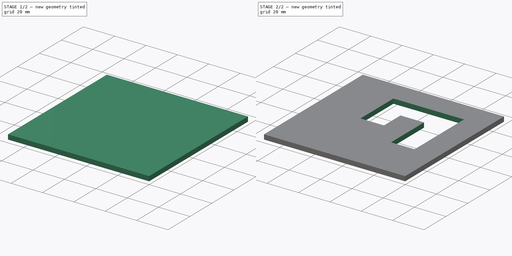
[diagram: build sequence overview — one tinted view per stage of 2, left to right]
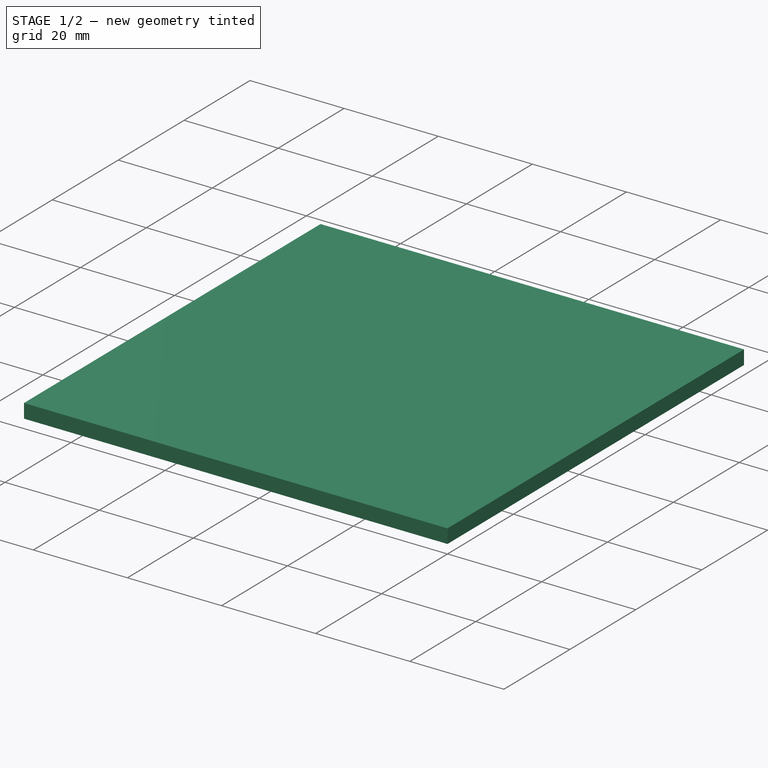
[diagram: stage 1 of 2 — iso view after this stage's code; geometry added in this stage tinted green]
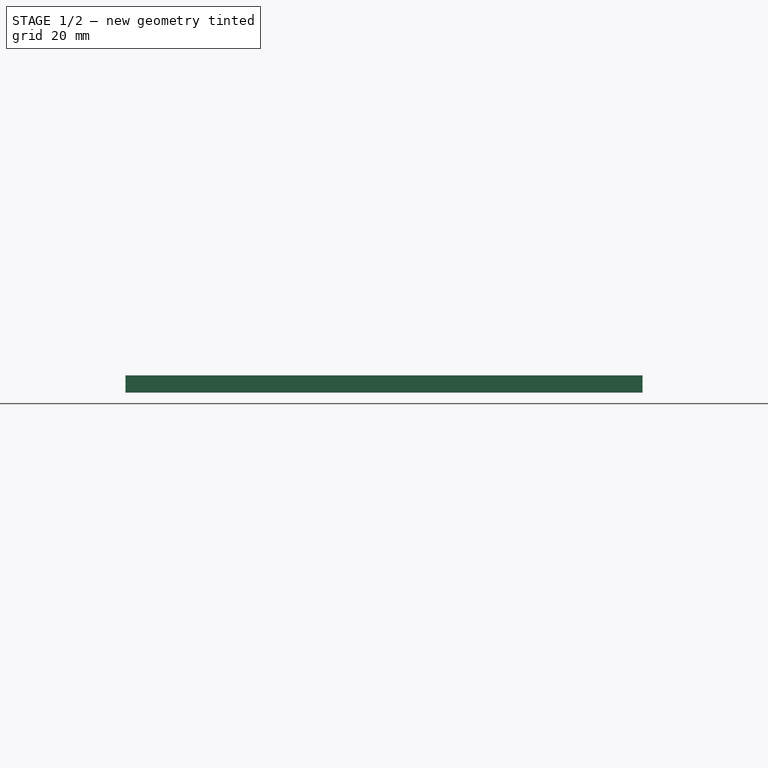
[diagram: stage 1 of 2 — front view after this stage's code; geometry added in this stage tinted green]
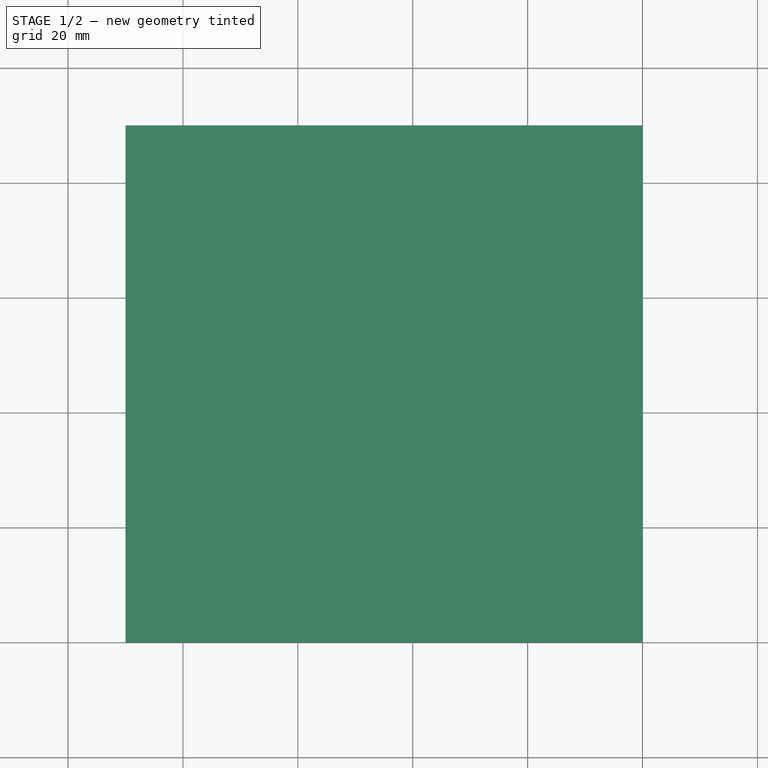
[diagram: stage 1 of 2 — top view after this stage's code; geometry added in this stage tinted green]
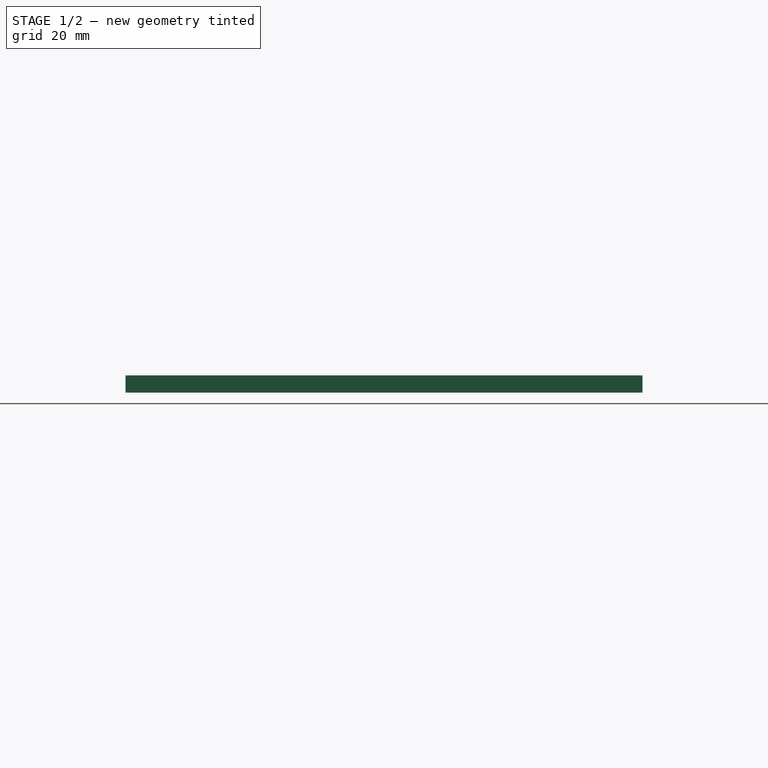
[diagram: stage 1 of 2 — right view after this stage's code; geometry added in this stage tinted green]
FCSTD DOCUMENT  (FreeCAD 0.18R16117 (Git))
Label: BackGroundID34
License: All rights reserved
LicenseURL: http://en.wikipedia.org/wiki/All_rights_reserved
objects: Sketcher::SketchObject×3, PartDesign::Pad×1, PartDesign::Pocket×1, PartDesign::Body×1
note: 8 computed .brp shape members not serialized (recipe doc carries the construction recipe); baked Part::Feature solids carry a one-line shape summary decoded from their .brp

FEATURE [Sketcher::SketchObject] Sketch  label="Background"
  MapMode = 5
  Support = -> [XY_Plane]
  sketch-geometry (4):
    g0: LineSegment StartX=-90 StartY=90 StartZ=0 EndX=0 EndY=90 EndZ=0
    g1: LineSegment StartX=0 StartY=90 StartZ=0 EndX=0 EndY=0 EndZ=0
    g2: LineSegment StartX=0 StartY=0 StartZ=0 EndX=-90 EndY=0 EndZ=0
    g3: LineSegment StartX=-90 StartY=0 StartZ=0 EndX=-90 EndY=90 EndZ=0
  constraints (11):
    c: Coincident(g0,g1)
    c: Coincident(g1,g2)
    c: Coincident(g2,g3)
    c: Coincident(g3,g0)
    c: Horizontal(g0)
    c: Horizontal(g2)
    c: Vertical(g1)
    c: Vertical(g3)
    c: DistanceY(g1,g1) = 90
    c: DistanceX(g2,g2) = 90
    c: Coincident(g1,g-1)
FEATURE [PartDesign::Pad] Pad
  Length = 3
  Length2 = 100
  Profile = -> Sketch
  Type = 0
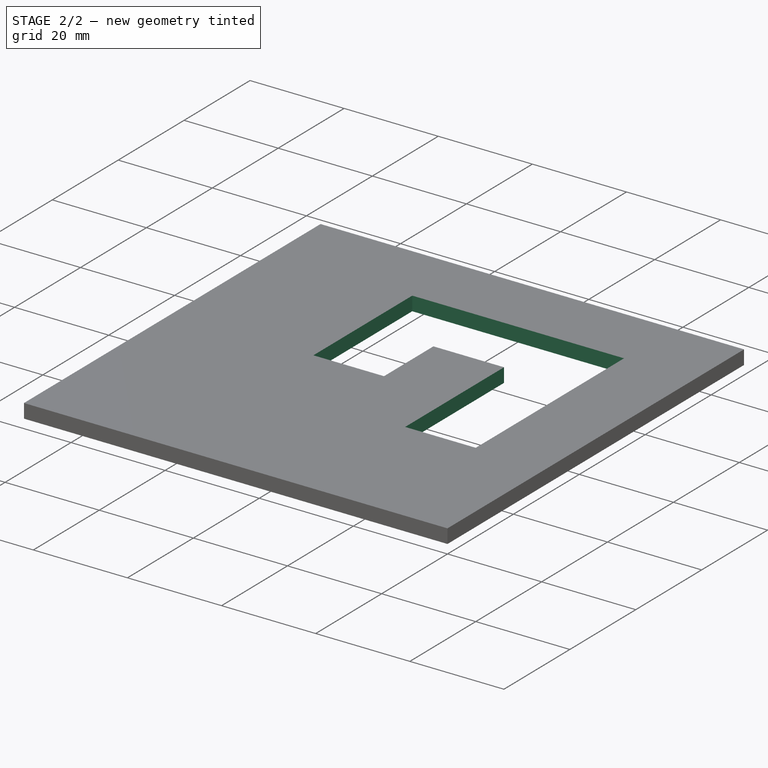
[diagram: stage 2 of 2 — iso view after this stage's code; geometry added in this stage tinted green]
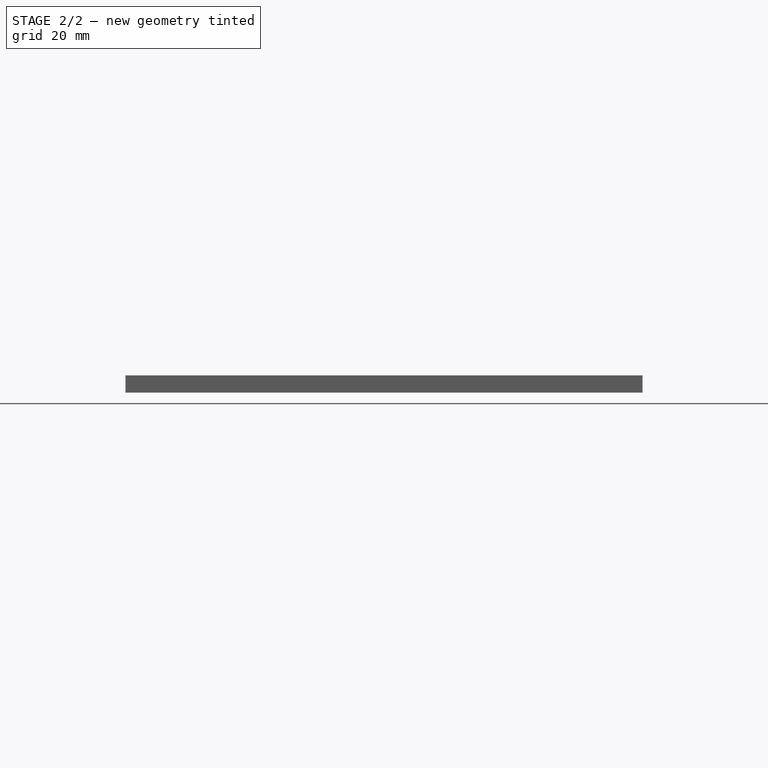
[diagram: stage 2 of 2 — front view after this stage's code; geometry added in this stage tinted green]
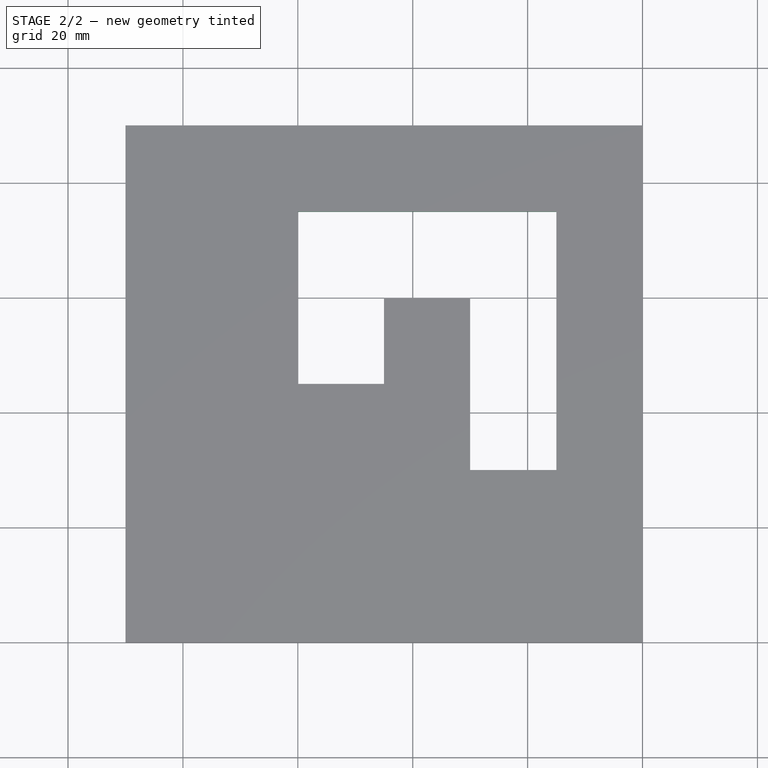
[diagram: stage 2 of 2 — top view after this stage's code; geometry added in this stage tinted green]
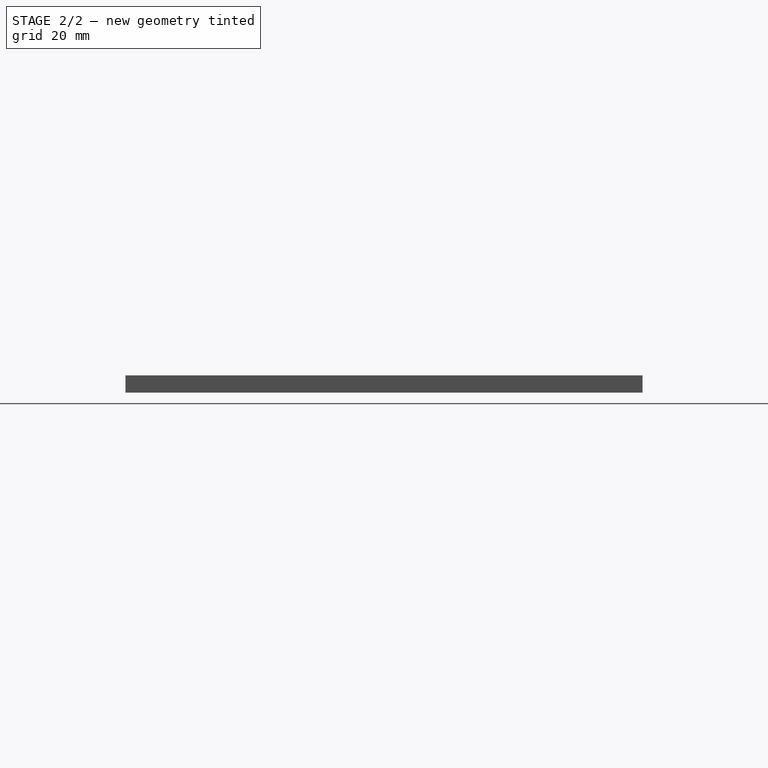
[diagram: stage 2 of 2 — right view after this stage's code; geometry added in this stage tinted green]
FEATURE [Sketcher::SketchObject] Sketch001
  MapMode = 5
  Placement = pos=(0,0,0) rot=(1,0,0;3.14159rad)
  Support = -> [Pad]
FEATURE [Sketcher::SketchObject] Sketch002  label="Hole"
  MapMode = 5
  Placement = pos=(0,0,3) rot=(0,0,1;0rad)
  Support = -> [Pad]
  sketch-geometry (8):
    g0: LineSegment StartX=-60 StartY=75 StartZ=0 EndX=-60 EndY=45 EndZ=0
    g1: LineSegment StartX=-60 StartY=75 StartZ=0 EndX=-15 EndY=75 EndZ=0
    g2: LineSegment StartX=-15 StartY=75 StartZ=0 EndX=-15 EndY=30 EndZ=0
    g3: LineSegment StartX=-15 StartY=30 StartZ=0 EndX=-30 EndY=30 EndZ=0
    g4: LineSegment StartX=-30 StartY=30 StartZ=0 EndX=-30 EndY=60 EndZ=0
    g5: LineSegment StartX=-30 StartY=60 StartZ=0 EndX=-45 EndY=60 EndZ=0
    g6: LineSegment StartX=-45 StartY=60 StartZ=0 EndX=-45 EndY=45 EndZ=0
    g7: LineSegment StartX=-60 StartY=45 StartZ=0 EndX=-45 EndY=45 EndZ=0
  constraints (24):
    c: Horizontal(g1)
    c: Horizontal(g7)
    c: Horizontal(g3)
    c: Horizontal(g5)
    c: Vertical(g0)
    c: Vertical(g4)
    c: Vertical(g6)
    c: Vertical(g2)
    c: Coincident(g1,g0)
    c: Coincident(g5,g6)
    c: Coincident(g0,g7)
    c: Coincident(g6,g7)
    c: Coincident(g5,g4)
    c: Coincident(g3,g4)
    c: Coincident(g3,g2)
    c: Coincident(g2,g1)
    c: DistanceX(g1,g1) = 45
    c: DistanceX(g3,g3) = 15
    c: DistanceX(g7,g7) = 15
    c: DistanceY(g2,g2) = 45
    c: DistanceY(g4,g4) = 30
    c: DistanceY(g0,g0) = 30
    c: DistanceX(g2,g-1) = 15
    c: DistanceY(g-1,g2) = 30
FEATURE [PartDesign::Pocket] Pocket
  BaseFeature = -> Pad
  Length = 3
  Length2 = 100
  Profile = -> Sketch002
  Type = 0
FEATURE [PartDesign::Body] Body
  Group = -> [Sketch,Pad,Sketch001,Sketch002,Pocket]
  Origin = -> Origin
  Tip = -> Pocket
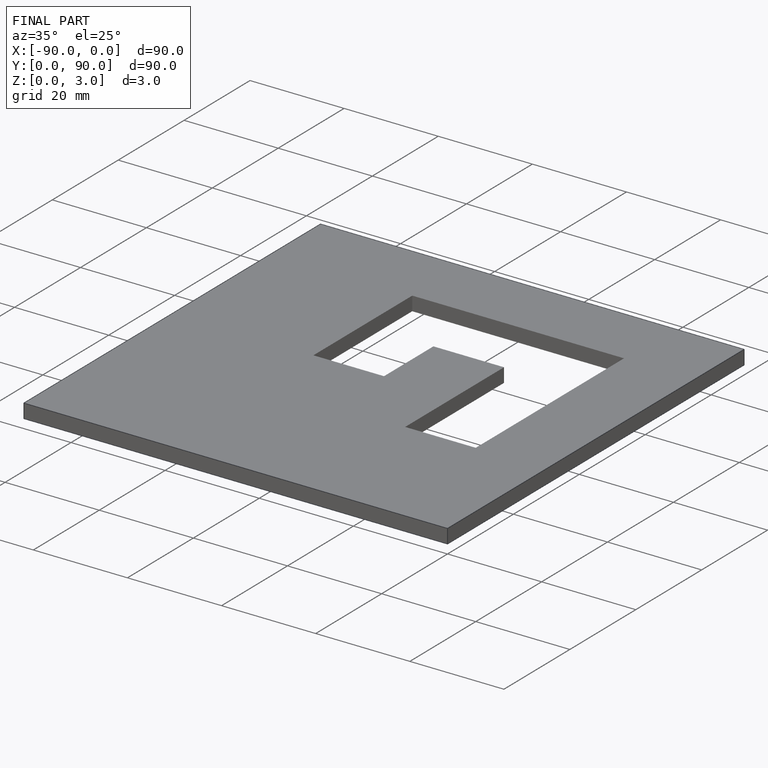
[diagram: finished part — iso view with bounding-box wireframe]
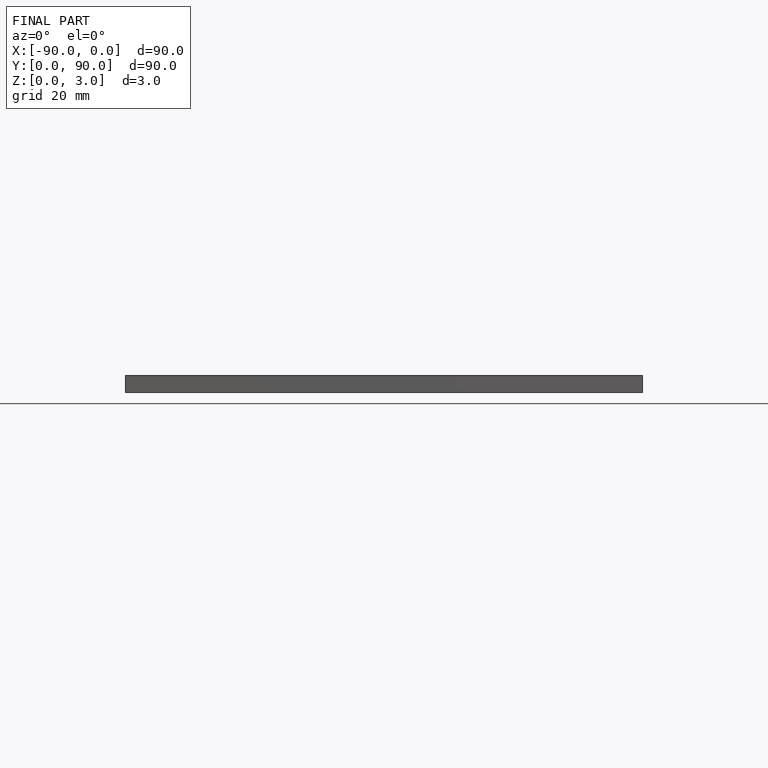
[diagram: finished part — front view with bounding-box wireframe]
